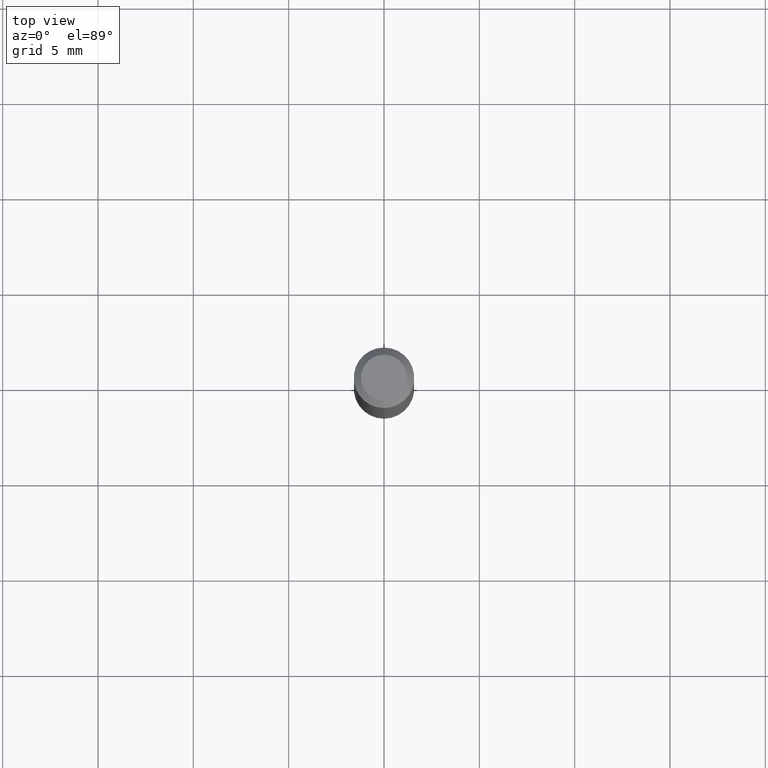
[diagram: clean part render]
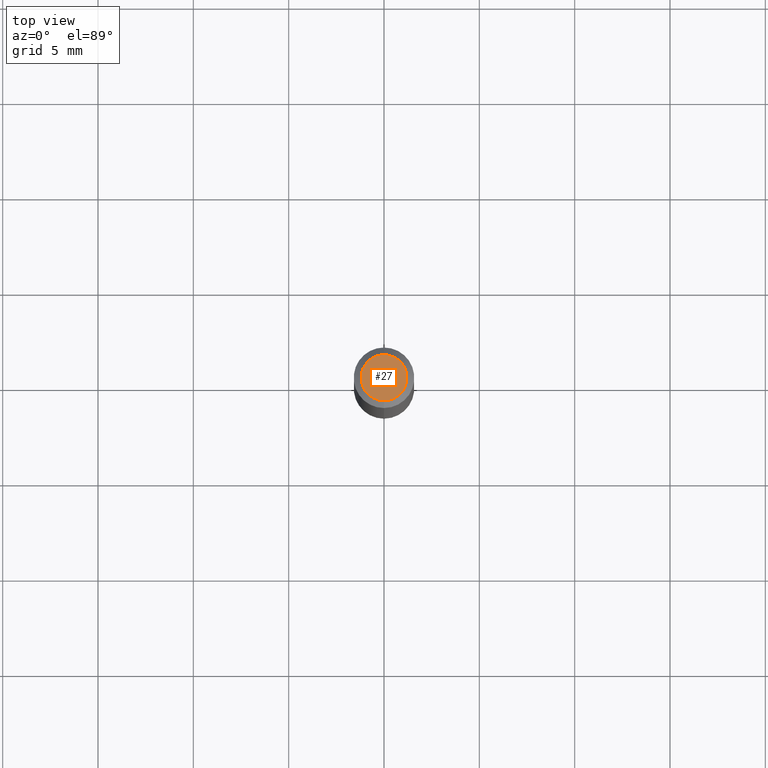
[diagram: same view with one face highlighted and labeled with its STEP entity id]
A machine part, top view. The second image highlights one B-rep face of the part: STEP entity #27.
In plain terms, the highlighted planar face has unit normal (0, -0, -1).
Its self-contained STEP definition (entity closure, byte-faithful):
#3 = CARTESIAN_POINT ( 'NONE',  ( 3.840629472727447874E-16, 0.04749999999999999362, -1.747056831868805136E-16 ) ) ;
#9 = CARTESIAN_POINT ( 'NONE',  ( -3.773273898774340269E-16, -0.04749999999999999362, 1.569868896864746099E-16 ) ) ;
#12 = AXIS2_PLACEMENT_3D ( 'NONE', #163, #40, #122 ) ;
#27 = ADVANCED_FACE ( 'NONE', ( #49 ), #354, .F. ) ;
#40 = DIRECTION ( 'NONE',  ( -2.445455239514301425E-29, 3.491500767087948658E-15, 1.000000000000000000 ) ) ;
#49 = FACE_OUTER_BOUND ( 'NONE', #65, .T. ) ;
#65 = EDGE_LOOP ( 'NONE', ( #94, #293 ) ) ;
#71 = VERTEX_POINT ( 'NONE', #9 ) ;
#85 = AXIS2_PLACEMENT_3D ( 'NONE', #418, #181, #294 ) ;
#90 = AXIS2_PLACEMENT_3D ( 'NONE', #357, #203, #239 ) ;
#94 = ORIENTED_EDGE ( 'NONE', *, *, #382, .T. ) ;
#100 = CIRCLE ( 'NONE', #85, 0.04749999999999999362 ) ;
#107 = EDGE_CURVE ( 'NONE', #71, #111, #288, .T. ) ;
#111 = VERTEX_POINT ( 'NONE', #3 ) ;
#122 = DIRECTION ( 'NONE',  ( -6.982962677686266711E-15, -1.000000000000000000, 3.491500767087949053E-15 ) ) ;
#163 = CARTESIAN_POINT ( 'NONE',  ( 2.166525820171981460E-46, -3.093259054927012683E-32, -8.859396750202964194E-18 ) ) ;
#181 = DIRECTION ( 'NONE',  ( -2.445455239514301425E-29, 3.491500767087948658E-15, 1.000000000000000000 ) ) ;
#203 = DIRECTION ( 'NONE',  ( 2.445455239514300865E-29, -3.491500767087948658E-15, -1.000000000000000000 ) ) ;
#239 = DIRECTION ( 'NONE',  ( 6.982962677686265922E-15, 1.000000000000000000, -3.491500767087948658E-15 ) ) ;
#288 = CIRCLE ( 'NONE', #12, 0.04749999999999999362 ) ;
#293 = ORIENTED_EDGE ( 'NONE', *, *, #107, .T. ) ;
#294 = DIRECTION ( 'NONE',  ( -6.982962677686266711E-15, -1.000000000000000000, 3.491500767087949053E-15 ) ) ;
#354 = PLANE ( 'NONE',  #90 ) ;
#357 = CARTESIAN_POINT ( 'NONE',  ( 3.316907271900976096E-16, 0.04749999999999999362, -1.702759848117790315E-16 ) ) ;
#382 = EDGE_CURVE ( 'NONE', #111, #71, #100, .T. ) ;
#418 = CARTESIAN_POINT ( 'NONE',  ( 2.166525820171981460E-46, -3.093259054927012683E-32, -8.859396750202964194E-18 ) ) ;